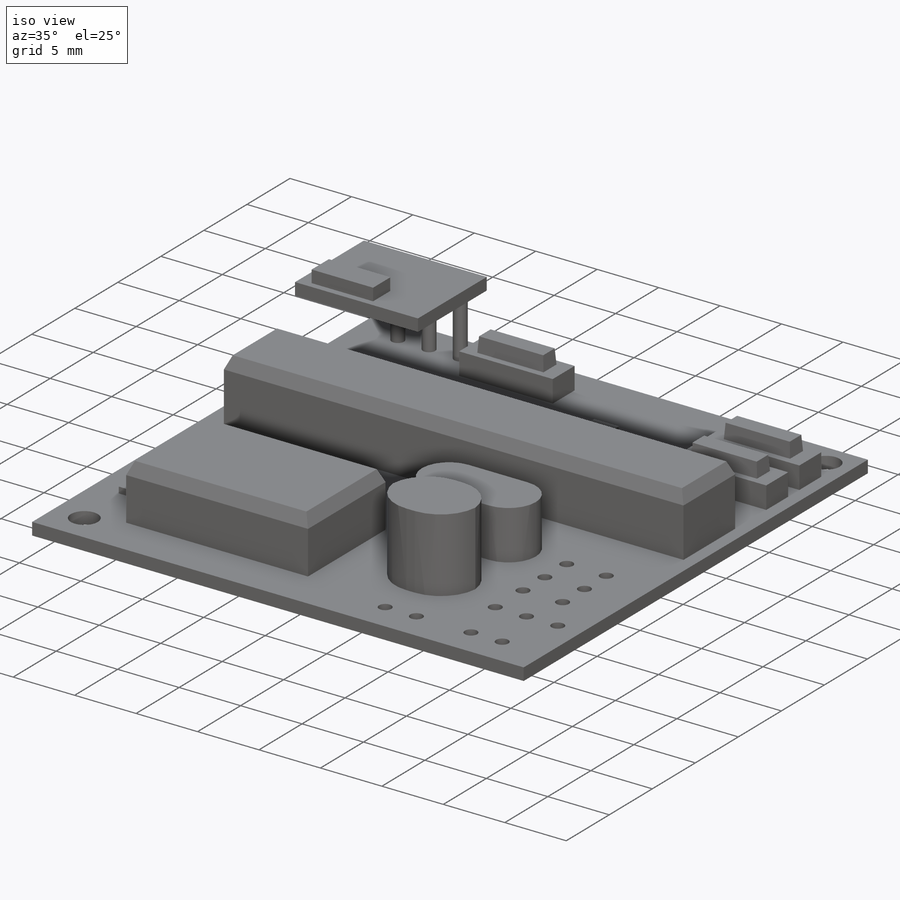
[diagram: iso view]
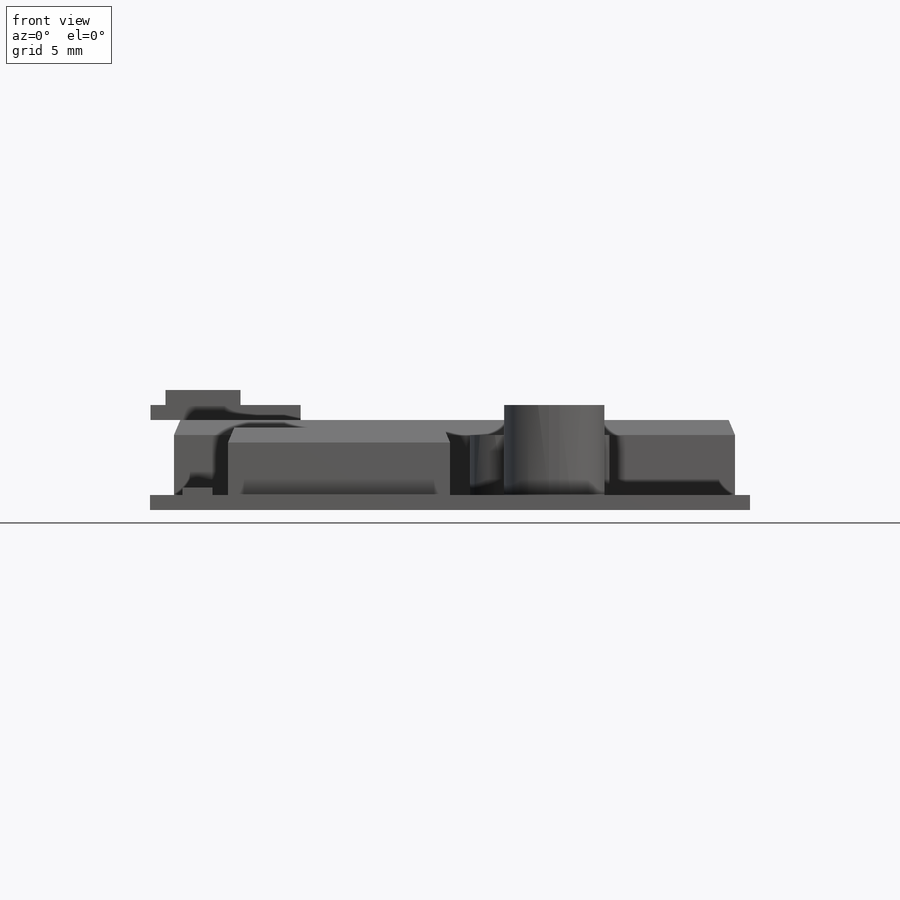
[diagram: front view]
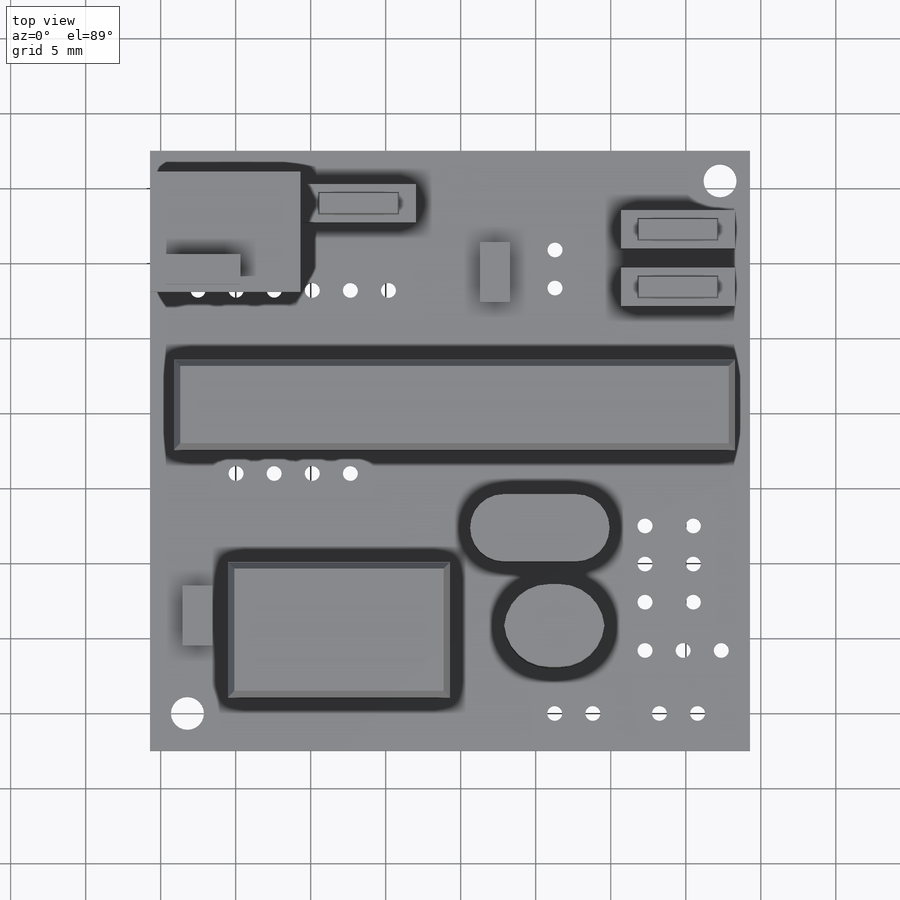
[diagram: top view]
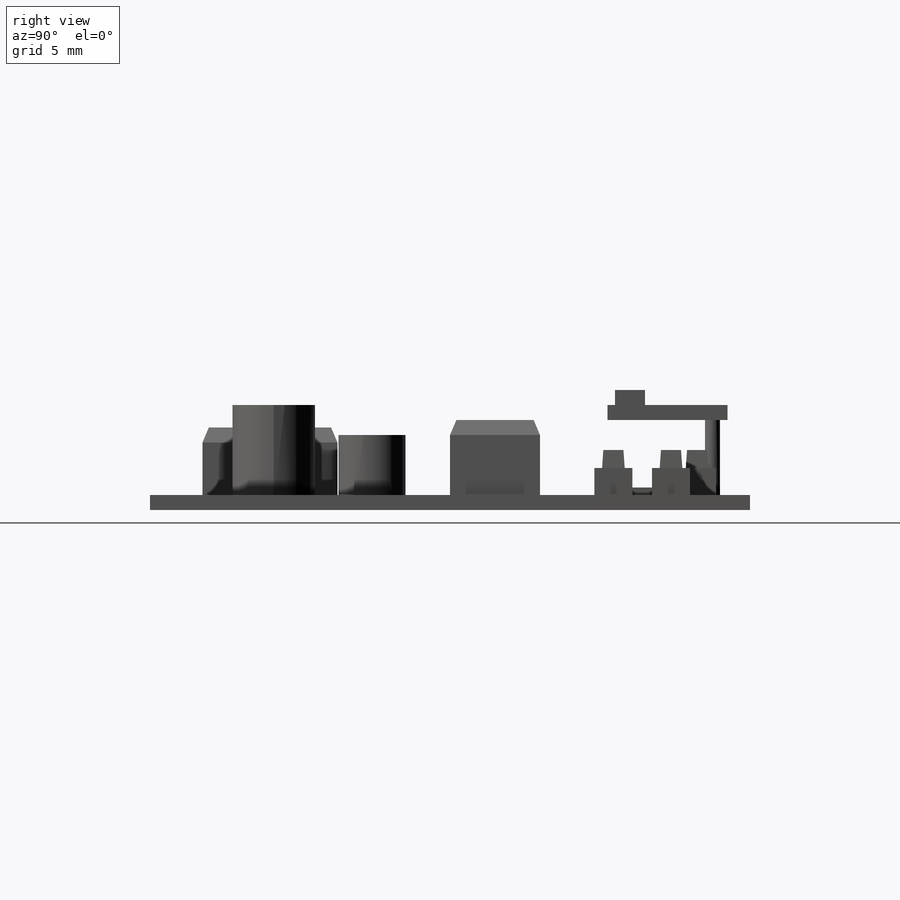
[diagram: right view]
SOLIDWORKS PART (.sldprt)
format: sldprt  version: not decoded by parser v0  size: 723,456 bytes
history: native  units: mm
features: sketch x16, cut_extrude x9, extrude x7, plane x3, chamfer x2, material x1, fillet x1 (+10 scaffold rows collapsed)
feature tree (49):
  scaffold x10  (default folders/planes/origin — collapsed)
  material  "Material <not specified>"
  plane  "Ön Düzlem"
  plane  "Üst Düzlem"
  plane  "Sağ Düzlem"
  sketch  "Sketch1"  dims[D1=40.0mm D2=40.0mm]
  extrude  "Boss-Extrude1"  Depth=1mm
  sketch  "Sketch2"  dims[D1=1.6mm D2=1.0mm D3=14.0mm D4=20.0mm D5=5.2mm D6=20.0mm D7=3.5mm D8=9.0mm D9=9.7mm D10=23.6mm D11=5.5mm D12=29.0mm D13=2.54mm D14=4.0mm D15=1.3mm D16=2.54mm D17=7.62mm D18=7.62mm D19=7.62mm D20=2.54mm D21=1.0mm D22=2.26mm D23=10.1mm]
  extrude  "Boss-Extrude2"  Depth=10mm
  sketch  "Sketch3"
  cut_extrude  "Cut-Extrude1"  Depth=5mm
  sketch  "Sketch4"
  cut_extrude  "Cut-Extrude2"  Depth=2mm
  sketch  "Sketch5"  dims[D1=1.2mm D2=1.2mm D3=0.6mm D4=0.6mm D5=0.6mm D6=0.6mm D7=1.2mm D8=1.2mm D9=1.2mm D10=1.2mm D11=0.6mm D12=0.6mm]
  cut_extrude  "Cut-Extrude3"  Depth=1.2mm
  sketch  "Sketch6"
  cut_extrude  "Cut-Extrude4"  Depth=1.2mm
  sketch  "Sketch7"
  cut_extrude  "Cut-Extrude5"  Depth=5mm
  chamfer  "Chamfer1"  Distance=1mm Angle=23deg
  sketch  "Sketch8"
  cut_extrude  "Cut-Extrude6"  Depth=5.5mm
  chamfer  "Chamfer2"  Distance=1mm Angle=23deg
  sketch  "Sketch9"
  cut_extrude  "Cut-Extrude7"  Depth=4mm
  fillet  "Fillet1"  Radius=3mm
  sketch  "Sketch10"  dims[c1.D1=~1.674283mm c1.D2=1.0mm c1.D3=~1.704441mm c2.D1=2.5mm c2.D2=2.5mm c2.D3=2.0mm c2.D4=2.0mm]
  cut_extrude  "Cut-Extrude8"  Depth=4mm
  sketch  "Sketch11"  dims[c1.D1=~0.467017mm c1.D3=~0.512606mm c1.D8=~0.690626mm c1.D10=~0.461452mm c1.D11=~0.48908mm c1.D13=~0.683712mm c1.D15=~0.474517mm c1.D16=~0.814449mm c1.D17=~0.952098mm c1.D19=~0.924544mm c1.D21=~0.528362mm c1.D22=~0.438096mm c1.D23=~0.261662mm c2.D1=3.2mm c2.D2=9.3mm c2.D3=2.54mm c2.D4=2.54mm c2.D5=2.54mm c2.D6=2.54mm c2.D7=2.54mm c2.D8=6.6mm c2.D9=13.0mm c2.D10=2.54mm c2.D11=7.0mm c2.D12=15.0mm c2.D13=2.54mm c2.D14=2.54mm c2.D15=3.22mm c2.D16=3.22mm c2.D17=2.54mm c2.D18=2.54mm c2.D19=2.5mm c2.D20=3.5mm c2.D21=2.54mm c2.D22=4.44mm c2.D23=2.54mm]
  cut_extrude  "Cut-Extrude10"  Depth=4mm
  sketch  "Sketch12"  dims[c1.D1=~0.467017mm c1.D3=~0.512606mm c1.D8=~0.690626mm c1.D10=~0.461452mm c1.D11=~0.48908mm c1.D13=~0.683712mm c1.D15=~0.474517mm c1.D16=~0.814449mm c1.D17=~0.952098mm c1.D19=~0.924544mm c1.D21=~0.528362mm c1.D22=~0.438096mm c1.D23=~0.261662mm c2.D1=3.2mm c2.D2=9.3mm c2.D3=2.54mm c2.D4=2.54mm c2.D5=2.54mm c2.D6=2.54mm c2.D7=2.54mm c2.D8=6.6mm c2.D9=13.0mm c2.D10=2.54mm c2.D11=7.0mm c2.D12=15.0mm c2.D13=2.54mm c2.D14=2.54mm c2.D15=3.22mm c2.D16=3.22mm c2.D17=2.54mm c2.D18=2.54mm c2.D19=2.5mm c2.D20=3.5mm c2.D21=2.54mm c2.D22=4.44mm c2.D23=2.54mm c3.D1=2.5mm c3.D2=3.5mm c3.D3=2.54mm c3.D4=0.0mm c3.D5=2.54mm c3.D6=0.0mm]
  extrude  "Boss-Extrude3"  Depth=5mm
  sketch  "Sketch13"  dims[D1=6.0mm D2=4.0mm D3=8.0mm D4=1.5mm]
  extrude  "Boss-Extrude4"  Depth=1mm
  sketch  "Sketch14"  dims[D1=1.0mm D2=0.5mm D3=2.0mm D4=5.0mm]
  extrude  "Boss-Extrude5"  Depth=1mm
  sketch  "Sketch15"  dims[D1=11.6mm D2=14.8mm]
  extrude  "Boss-Extrude6"  Depth=4mm
  sketch  "Sketch16"  dims[D1=2.0mm D2=4.0mm D3=2.0mm D4=4.0mm D5=7.0mm D6=2.15mm D7=6.1mm D8=16.0mm]
  extrude  "Boss-Extrude7"  Depth=0.5mm
decode coverage: 29 of 35 modeling features carry decoded parameters
note: ~ marks probable driven/reference dimensions
note: suppression state not decoded; provenance and decode notes live in map.json
